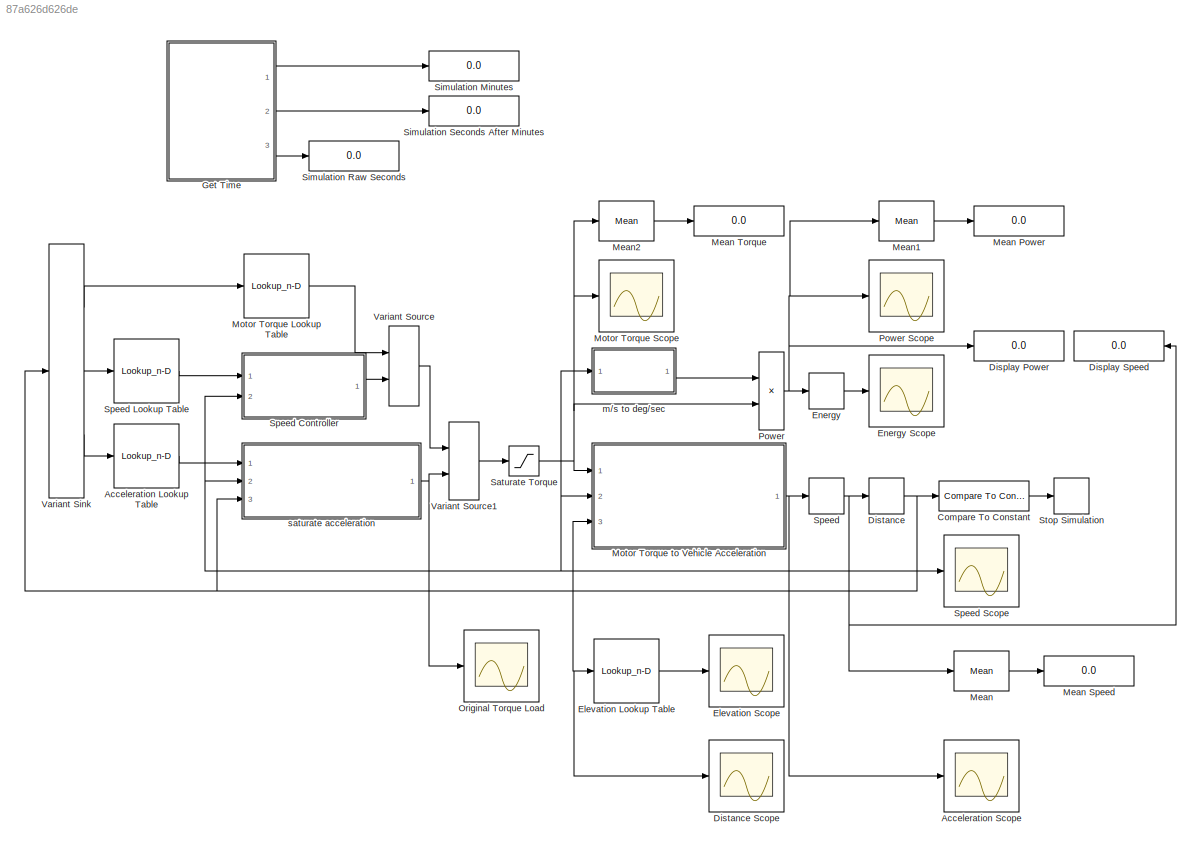
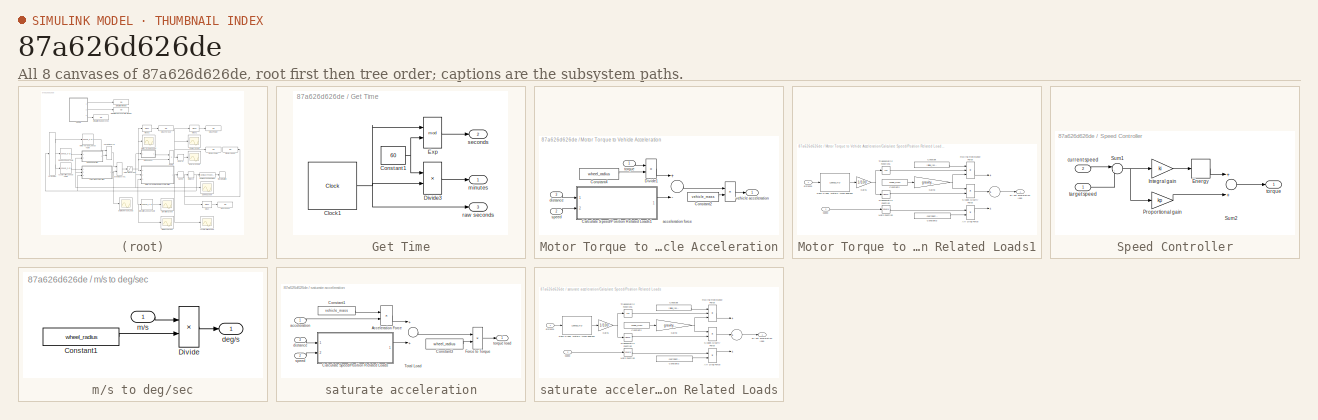
[diagram: thumbnail index - all 8 canvases of the model, root first then tree order]
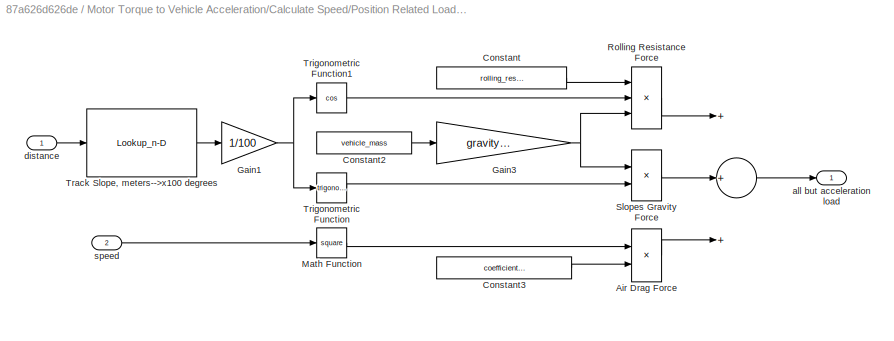
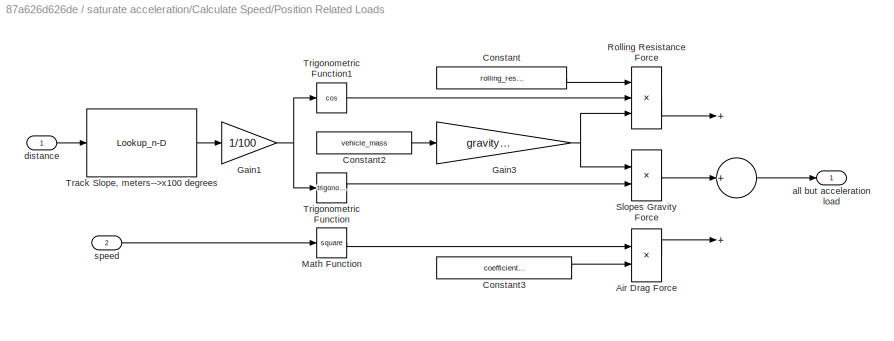
MODEL slx_87a626d626de
KIND model
CONFIG AbsTol = auto
CONFIG EnableMultiTasking = off
CONFIG FixedStep = auto
CONFIG MaxStep = auto
CONFIG MinStep = auto
CONFIG RelTol = 1e-3
CONFIG SampleTimeConstraint = Unconstrained
CONFIG Solver = ode4
CONFIG SolverName = ode4
CONFIG StartTime = 0.0
CONFIG StopTime = 330
BLOCK [Lookup_n-D] Acceleration Lookup Table
  BreakpointsForDimension1 = desired_acceleration_samples_positions
  InternalRulePriority = Speed
  NumberOfTableDimensions = 1
  Ports = [1, 1]
  RndMeth = Simplest
  Table = desired_acceleration
BLOCK [Scope] Acceleration Scope
  Floating = off
  NumInputPorts = 1
  Ports = [1]
  ScopeSpecificationString = Simulink.scopes.TimeScopeBlockCfg('CurrentConfiguration', extmgr.ConfigurationSet(extmgr.Configuration('Core','General UI',true),extmgr.Configuration('Core','Source UI',true),extmgr.Configuration('Sources','WiredSimulink',true,'DataLoggingVariableName','ScopeData3'),extmgr.Configuration('Visuals','Time Domain',true,'SerializedDisplays',{struct('MinYLimReal','-0.40812','MaxYLimReal','0.76139','YLab...<+1523ch>
BLOCK [Reference] Compare To Constant  REF=simulink/Logic and Bit
Operations/Compare
To Constant
  Ports = [1, 1]
  SourceBlock = simulink/Logic and Bit\nOperations/Compare\nTo Constant
  SourceProductBaseCode = SL
  SourceProductName = Simulink
  SourceType = Compare To Constant
BLOCK [Display] Display Power
  Decimation = 1
  Ports = [1]
BLOCK [Display] Display Speed
  Decimation = 1
  Ports = [1]
BLOCK [DiscreteIntegrator] Distance
  ICPrevOutput = DiscIntNeverNeededParam
  ICPrevScaledInput = DiscIntNeverNeededParam
  Ports = [1, 1]
  SampleTime = Ts
BLOCK [Scope] Distance Scope
  Floating = off
  NumInputPorts = 1
  Ports = [1]
  ScopeSpecificationString = Simulink.scopes.TimeScopeBlockCfg('CurrentConfiguration', extmgr.ConfigurationSet(extmgr.Configuration('Core','General UI',true),extmgr.Configuration('Core','Source UI',true),extmgr.Configuration('Sources','WiredSimulink',true,'DataLoggingVariableName','ScopeData6'),extmgr.Configuration('Visuals','Time Domain',true,'SerializedDisplays',{struct('MinYLimReal','-280.50002','MaxYLimReal','2524.50014',...<+1506ch>
BLOCK [Lookup_n-D] Elevation Lookup Table
  BreakpointsForDimension1 = interpolated_positions
  InternalRulePriority = Speed
  NumberOfTableDimensions = 1
  Ports = [1, 1]
  RndMeth = Simplest
  Table = interpolated_elevation
BLOCK [Scope] Elevation Scope
  Floating = off
  NumInputPorts = 1
  Ports = [1]
  ScopeSpecificationString = Simulink.scopes.TimeScopeBlockCfg('CurrentConfiguration', extmgr.ConfigurationSet(extmgr.Configuration('Core','General UI',true),extmgr.Configuration('Core','Source UI',true),extmgr.Configuration('Sources','WiredSimulink',true,'DataLoggingVariableName','ScopeData1'),extmgr.Configuration('Visuals','Time Domain',true,'SerializedDisplays',{struct('MinYLimReal','0','MaxYLimReal','15','YLabelReal','','...<+1478ch>
BLOCK [DiscreteIntegrator] Energy
  ICPrevOutput = DiscIntNeverNeededParam
  ICPrevScaledInput = DiscIntNeverNeededParam
  Ports = [1, 1]
  SampleTime = Ts
  gainval = 0.1
BLOCK [Scope] Energy Scope
  Floating = off
  NumInputPorts = 1
  Ports = [1]
  ScopeSpecificationString = Simulink.scopes.TimeScopeBlockCfg('CurrentConfiguration', extmgr.ConfigurationSet(extmgr.Configuration('Core','General UI',true),extmgr.Configuration('Core','Source UI',true),extmgr.Configuration('Sources','WiredSimulink',true,'DataLoggingVariableName','ScopeData17'),extmgr.Configuration('Visuals','Time Domain',true,'SerializedDisplays',{struct('MinYLimReal','-136.13484','MaxYLimReal','1225.21359'...<+1512ch>
BLOCK [SubSystem] Get Time
  Ports = [0, 3]
  RequestExecContextInheritance = off
BLOCK [Clock] Get Time/Clock1
  Decimation = 1/Ts
  DisplayTime = on
BLOCK [Constant] Get Time/Constant1
  Value = 60
BLOCK [Product] Get Time/Divide3
  InputSameDT = off
  Inputs = /*
  OutDataTypeStr = fixdt('int8', 'DataTypeOverride', 'Off')
  Ports = [2, 1]
  RndMeth = Floor
  SaturateOnIntegerOverflow = off
BLOCK [Math] Get Time/Exp
  Operator = mod
  Ports = [2, 1]
BLOCK [Outport] Get Time/minutes
  IconDisplay = Port number
BLOCK [Outport] Get Time/raw seconds
  IconDisplay = Port number
  Port = 3
BLOCK [Outport] Get Time/seconds
  IconDisplay = Port number
  Port = 2
BLOCK [Reference] Mean  REF=dspstat3/Mean
  Ports = [1, 1]
  SourceBlock = dspstat3/Mean
  SourceProductBaseCode = DS
  SourceProductName = DSP System Toolbox
  SourceType = Mean
  UserDataPersistent = on
BLOCK [Display] Mean Power
  Decimation = 1
  Ports = [1]
BLOCK [Display] Mean Speed
  Decimation = 1
  Ports = [1]
BLOCK [Display] Mean Torque
  Decimation = 1
  Ports = [1]
BLOCK [Reference] Mean1  REF=dspstat3/Mean
  Ports = [1, 1]
  SourceBlock = dspstat3/Mean
  SourceProductBaseCode = DS
  SourceProductName = DSP System Toolbox
  SourceType = Mean
  UserDataPersistent = on
BLOCK [Reference] Mean2  REF=dspstat3/Mean
  Ports = [1, 1]
  SourceBlock = dspstat3/Mean
  SourceProductBaseCode = DS
  SourceProductName = DSP System Toolbox
  SourceType = Mean
  UserDataPersistent = on
BLOCK [Lookup_n-D] Motor Torque Lookup Table
  BreakpointsForDimension1 = desired_torque_samples_positions
  InternalRulePriority = Speed
  NumberOfTableDimensions = 1
  Ports = [1, 1]
  RndMeth = Simplest
  Table = desired_torque
BLOCK [Scope] Motor Torque Scope
  Floating = off
  NumInputPorts = 1
  Ports = [1]
  ScopeSpecificationString = Simulink.scopes.TimeScopeBlockCfg('CurrentConfiguration', extmgr.ConfigurationSet(extmgr.Configuration('Core','General UI',true),extmgr.Configuration('Core','Source UI',true),extmgr.Configuration('Sources','WiredSimulink',true,'DataLoggingVariableName','ScopeData2'),extmgr.Configuration('Visuals','Time Domain',true,'SerializedDisplays',{struct('MinYLimReal','-1.875','MaxYLimReal','16.875','YLabelR...<+1494ch>
BLOCK [SubSystem] Motor Torque to Vehicle Acceleration
  Ports = [3, 1]
  RequestExecContextInheritance = off
BLOCK [Product] Motor Torque to Vehicle Acceleration/ 
  InputSameDT = off
  Inputs = */
  OutDataTypeStr = Inherit: Inherit via internal rule
  Ports = [2, 1]
  RndMeth = Floor
  SaturateOnIntegerOverflow = off
BLOCK [SubSystem] Motor Torque to Vehicle Acceleration/Calculate Speed//Position Related Loads1
  Ports = [2, 1]
  RequestExecContextInheritance = off
BLOCK [Sum] Motor Torque to Vehicle Acceleration/Calculate Speed//Position Related Loads1/ 
  InputSameDT = off
  Inputs = +++
  OutDataTypeStr = Inherit: Inherit via internal rule
  Ports = [3, 1]
  SaturateOnIntegerOverflow = off
BLOCK [Product] Motor Torque to Vehicle Acceleration/Calculate Speed//Position Related Loads1/Air Drag Force
  InputSameDT = off
  OutDataTypeStr = Inherit: Inherit via internal rule
  Ports = [2, 1]
  RndMeth = Floor
  SampleTime = Ts
  SaturateOnIntegerOverflow = off
BLOCK [Constant] Motor Torque to Vehicle Acceleration/Calculate Speed//Position Related Loads1/Constant
  SampleTime = Ts
  Value = rolling_resistance_factor
BLOCK [Constant] Motor Torque to Vehicle Acceleration/Calculate Speed//Position Related Loads1/Constant2
  SampleTime = Ts
  Value = vehicle_mass
BLOCK [Constant] Motor Torque to Vehicle Acceleration/Calculate Speed//Position Related Loads1/Constant3
  SampleTime = Ts
  Value = coefficient_regarding_air
BLOCK [Gain] Motor Torque to Vehicle Acceleration/Calculate Speed//Position Related Loads1/Gain1
  Gain = 1/100
  OutDataTypeStr = Inherit: Inherit via internal rule
  ParamDataTypeStr = Inherit: Inherit via internal rule
  SampleTime = Ts
  SaturateOnIntegerOverflow = off
BLOCK [Gain] Motor Torque to Vehicle Acceleration/Calculate Speed//Position Related Loads1/Gain3
  Gain = gravity_acceleration
  OutDataTypeStr = Inherit: Inherit via internal rule
  ParamDataTypeStr = Inherit: Inherit via internal rule
  SampleTime = Ts
  SaturateOnIntegerOverflow = off
BLOCK [Math] Motor Torque to Vehicle Acceleration/Calculate Speed//Position Related Loads1/Math Function
  Operator = square
  Ports = [1, 1]
BLOCK [Product] Motor Torque to Vehicle Acceleration/Calculate Speed//Position Related Loads1/Rolling Resistance Force
  InputSameDT = off
  Inputs = 3
  OutDataTypeStr = Inherit: Inherit via internal rule
  Ports = [3, 1]
  RndMeth = Floor
  SampleTime = Ts
  SaturateOnIntegerOverflow = off
BLOCK [Product] Motor Torque to Vehicle Acceleration/Calculate Speed//Position Related Loads1/Slopes Gravity Force
  InputSameDT = off
  OutDataTypeStr = Inherit: Inherit via internal rule
  Ports = [2, 1]
  RndMeth = Floor
  SampleTime = Ts
  SaturateOnIntegerOverflow = off
BLOCK [Lookup_n-D] Motor Torque to Vehicle Acceleration/Calculate Speed//Position Related Loads1/Track Slope, meters-->x100 degrees
  BreakpointsForDimension1 = interpolated_positions
  InternalRulePriority = Speed
  NumberOfTableDimensions = 1
  Ports = [1, 1]
  RndMeth = Simplest
  Table = interpolated_slope
BLOCK [Trigonometry] Motor Torque to Vehicle Acceleration/Calculate Speed//Position Related Loads1/Trigonometric Function
  Ports = [1, 1]
  SampleTime = Ts
BLOCK [Trigonometry] Motor Torque to Vehicle Acceleration/Calculate Speed//Position Related Loads1/Trigonometric Function1
  Operator = cos
  Ports = [1, 1]
  SampleTime = Ts
BLOCK [Outport] Motor Torque to Vehicle Acceleration/Calculate Speed//Position Related Loads1/all but acceleration load
  IconDisplay = Port number
BLOCK [Inport] Motor Torque to Vehicle Acceleration/Calculate Speed//Position Related Loads1/distance
  IconDisplay = Port number
BLOCK [Inport] Motor Torque to Vehicle Acceleration/Calculate Speed//Position Related Loads1/speed
  IconDisplay = Port number
  Port = 2
BLOCK [Constant] Motor Torque to Vehicle Acceleration/Constant2
  SampleTime = Ts
  Value = vehicle_mass
BLOCK [Constant] Motor Torque to Vehicle Acceleration/Constant4
  SampleTime = Ts
  Value = wheel_radius
BLOCK [Product] Motor Torque to Vehicle Acceleration/Divide1
  InputSameDT = off
  Inputs = */
  OutDataTypeStr = Inherit: Inherit via internal rule
  Ports = [2, 1]
  RndMeth = Floor
  SaturateOnIntegerOverflow = off
BLOCK [Sum] Motor Torque to Vehicle Acceleration/acceleration force
  InputSameDT = off
  Inputs = +-
  OutDataTypeStr = Inherit: Inherit via internal rule
  Ports = [2, 1]
  SaturateOnIntegerOverflow = off
BLOCK [Inport] Motor Torque to Vehicle Acceleration/distance
  IconDisplay = Port number
  Port = 3
BLOCK [Inport] Motor Torque to Vehicle Acceleration/speed
  IconDisplay = Port number
  Port = 2
BLOCK [Inport] Motor Torque to Vehicle Acceleration/torque
  IconDisplay = Port number
BLOCK [Outport] Motor Torque to Vehicle Acceleration/vehicle acceleration
  IconDisplay = Port number
BLOCK [Scope] Original Torque Load
  Floating = off
  NumInputPorts = 1
  Ports = [1]
  ScopeSpecificationString = Simulink.scopes.TimeScopeBlockCfg('CurrentConfiguration', extmgr.ConfigurationSet(extmgr.Configuration('Core','General UI',true),extmgr.Configuration('Core','Source UI',true),extmgr.Configuration('Sources','WiredSimulink',true,'DataLoggingVariableName','ScopeData5'),extmgr.Configuration('Visuals','Time Domain',true,'SerializedDisplays',{struct('MinYLimReal','-9.68016','MaxYLimReal','13.4435','YLab...<+1507ch>
BLOCK [Product] Power
  InputSameDT = off
  OutDataTypeStr = Inherit: Inherit via internal rule
  Ports = [2, 1]
  RndMeth = Floor
  SaturateOnIntegerOverflow = off
BLOCK [Scope] Power Scope
  Floating = off
  NumInputPorts = 1
  Ports = [1]
  ScopeSpecificationString = Simulink.scopes.TimeScopeBlockCfg('CurrentConfiguration', extmgr.ConfigurationSet(extmgr.Configuration('Core','General UI',true),extmgr.Configuration('Core','Source UI',true),extmgr.Configuration('Sources','WiredSimulink',true,'DataLoggingVariableName','ScopeData16'),extmgr.Configuration('Visuals','Time Domain',true,'SerializedDisplays',{struct('MinYLimReal','-19.31406','MaxYLimReal','173.82658','...<+1503ch>
BLOCK [Saturate] Saturate Torque
  InputPortMap = u0
  LowerLimit = min_torque
  Ports = [1, 1]
  UpperLimit = max_torque
BLOCK [Display] Simulation Minutes
  Decimation = 1
  Ports = [1]
BLOCK [Display] Simulation Raw Seconds
  Decimation = 1
  Ports = [1]
BLOCK [Display] Simulation Seconds After Minutes
  Decimation = 1
  Ports = [1]
BLOCK [DiscreteIntegrator] Speed
  ICPrevOutput = DiscIntNeverNeededParam
  ICPrevScaledInput = DiscIntNeverNeededParam
  Ports = [1, 1]
  SampleTime = Ts
BLOCK [SubSystem] Speed Controller
  Ports = [2, 1]
  RequestExecContextInheritance = off
BLOCK [DiscreteIntegrator] Speed Controller/Energy
  ICPrevOutput = DiscIntNeverNeededParam
  ICPrevScaledInput = DiscIntNeverNeededParam
  Ports = [1, 1]
  SampleTime = Ts
  gainval = 0.1
BLOCK [Gain] Speed Controller/Integral gain
  Gain = ki
BLOCK [Gain] Speed Controller/Proportional gain
  Gain = kp
BLOCK [Sum] Speed Controller/Sum1
  IconShape = round
  Inputs = |-+
  Ports = [2, 1]
BLOCK [Sum] Speed Controller/Sum2
  Ports = [2, 1]
BLOCK [Inport] Speed Controller/current speed
  IconDisplay = Port number
  Port = 2
BLOCK [Inport] Speed Controller/target speed
  IconDisplay = Port number
BLOCK [Outport] Speed Controller/torque
  IconDisplay = Port number
BLOCK [Lookup_n-D] Speed Lookup Table
  BreakpointsForDimension1 = desired_speed_samples_positions
  InternalRulePriority = Speed
  NumberOfTableDimensions = 1
  Ports = [1, 1]
  RndMeth = Simplest
  Table = desired_speed
BLOCK [Scope] Speed Scope
  Floating = off
  NumInputPorts = 1
  Ports = [1]
  ScopeSpecificationString = Simulink.scopes.TimeScopeBlockCfg('CurrentConfiguration', extmgr.ConfigurationSet(extmgr.Configuration('Core','General UI',true),extmgr.Configuration('Core','Source UI',true),extmgr.Configuration('Sources','WiredSimulink',true,'DataLoggingVariableName','ScopeData4'),extmgr.Configuration('Visuals','Time Domain',true,'SerializedDisplays',{struct('MinYLimReal','-1.22292','MaxYLimReal','11.00624','YLa...<+1495ch>
BLOCK [Stop] Stop Simulation
BLOCK [VariantSink] Variant Sink
  Ports = [1, 3]
BLOCK [VariantSource] Variant Source
  AllowZeroVariantControls = on
  Ports = [2, 1]
BLOCK [VariantSource] Variant Source1
  Ports = [2, 1]
BLOCK [SubSystem] m//s to deg//sec
  Ports = [1, 1]
  RequestExecContextInheritance = off
BLOCK [Constant] m//s to deg//sec/Constant1
  SampleTime = Ts
  Value = wheel_radius
BLOCK [Product] m//s to deg//sec/Divide
  InputSameDT = off
  Inputs = */
  OutDataTypeStr = Inherit: Inherit via internal rule
  Ports = [2, 1]
  RndMeth = Floor
  SaturateOnIntegerOverflow = off
BLOCK [Outport] m//s to deg//sec/deg//s
  IconDisplay = Port number
BLOCK [Inport] m//s to deg//sec/m//s
  IconDisplay = Port number
BLOCK [SubSystem] saturate acceleration
  Ports = [3, 1]
  RequestExecContextInheritance = off
BLOCK [Product] saturate acceleration/Acceleration Force
  InputSameDT = off
  OutDataTypeStr = Inherit: Inherit via internal rule
  Ports = [2, 1]
  RndMeth = Floor
  SampleTime = Ts
  SaturateOnIntegerOverflow = off
BLOCK [SubSystem] saturate acceleration/Calculate Speed//Position Related Loads
  Ports = [2, 1]
  RequestExecContextInheritance = off
BLOCK [Sum] saturate acceleration/Calculate Speed//Position Related Loads/ 
  InputSameDT = off
  Inputs = +++
  OutDataTypeStr = Inherit: Inherit via internal rule
  Ports = [3, 1]
  SaturateOnIntegerOverflow = off
BLOCK [Product] saturate acceleration/Calculate Speed//Position Related Loads/Air Drag Force
  InputSameDT = off
  OutDataTypeStr = Inherit: Inherit via internal rule
  Ports = [2, 1]
  RndMeth = Floor
  SampleTime = Ts
  SaturateOnIntegerOverflow = off
BLOCK [Constant] saturate acceleration/Calculate Speed//Position Related Loads/Constant
  SampleTime = Ts
  Value = rolling_resistance_factor
BLOCK [Constant] saturate acceleration/Calculate Speed//Position Related Loads/Constant2
  SampleTime = Ts
  Value = vehicle_mass
BLOCK [Constant] saturate acceleration/Calculate Speed//Position Related Loads/Constant3
  SampleTime = Ts
  Value = coefficient_regarding_air
BLOCK [Gain] saturate acceleration/Calculate Speed//Position Related Loads/Gain1
  Gain = 1/100
  OutDataTypeStr = Inherit: Inherit via internal rule
  ParamDataTypeStr = Inherit: Inherit via internal rule
  SampleTime = Ts
  SaturateOnIntegerOverflow = off
BLOCK [Gain] saturate acceleration/Calculate Speed//Position Related Loads/Gain3
  Gain = gravity_acceleration
  OutDataTypeStr = Inherit: Inherit via internal rule
  ParamDataTypeStr = Inherit: Inherit via internal rule
  SampleTime = Ts
  SaturateOnIntegerOverflow = off
BLOCK [Math] saturate acceleration/Calculate Speed//Position Related Loads/Math Function
  Operator = square
  Ports = [1, 1]
BLOCK [Product] saturate acceleration/Calculate Speed//Position Related Loads/Rolling Resistance Force
  InputSameDT = off
  Inputs = 3
  OutDataTypeStr = Inherit: Inherit via internal rule
  Ports = [3, 1]
  RndMeth = Floor
  SampleTime = Ts
  SaturateOnIntegerOverflow = off
BLOCK [Product] saturate acceleration/Calculate Speed//Position Related Loads/Slopes Gravity Force
  InputSameDT = off
  OutDataTypeStr = Inherit: Inherit via internal rule
  Ports = [2, 1]
  RndMeth = Floor
  SampleTime = Ts
  SaturateOnIntegerOverflow = off
BLOCK [Lookup_n-D] saturate acceleration/Calculate Speed//Position Related Loads/Track Slope, meters-->x100 degrees
  BreakpointsForDimension1 = interpolated_positions
  InternalRulePriority = Speed
  NumberOfTableDimensions = 1
  Ports = [1, 1]
  RndMeth = Simplest
  Table = interpolated_slope
BLOCK [Trigonometry] saturate acceleration/Calculate Speed//Position Related Loads/Trigonometric Function
  Ports = [1, 1]
  SampleTime = Ts
BLOCK [Trigonometry] saturate acceleration/Calculate Speed//Position Related Loads/Trigonometric Function1
  Operator = cos
  Ports = [1, 1]
  SampleTime = Ts
BLOCK [Outport] saturate acceleration/Calculate Speed//Position Related Loads/all but acceleration load
  IconDisplay = Port number
BLOCK [Inport] saturate acceleration/Calculate Speed//Position Related Loads/distance
  IconDisplay = Port number
BLOCK [Inport] saturate acceleration/Calculate Speed//Position Related Loads/speed
  IconDisplay = Port number
  Port = 2
BLOCK [Constant] saturate acceleration/Constant1
  SampleTime = Ts
  Value = vehicle_mass
BLOCK [Constant] saturate acceleration/Constant3
  SampleTime = Ts
  Value = wheel_radius
BLOCK [Product] saturate acceleration/Force to Torque
  InputSameDT = off
  OutDataTypeStr = Inherit: Inherit via internal rule
  Ports = [2, 1]
  RndMeth = Floor
  SampleTime = Ts
  SaturateOnIntegerOverflow = off
BLOCK [Sum] saturate acceleration/Total Load
  InputSameDT = off
  OutDataTypeStr = Inherit: Inherit via internal rule
  Ports = [2, 1]
  SaturateOnIntegerOverflow = off
BLOCK [Inport] saturate acceleration/acceleration
  IconDisplay = Port number
BLOCK [Inport] saturate acceleration/distance
  IconDisplay = Port number
  Port = 3
BLOCK [Inport] saturate acceleration/speed
  IconDisplay = Port number
  Port = 2
BLOCK [Outport] saturate acceleration/torque load
  IconDisplay = Port number
LINE Acceleration Lookup Table:1 -> saturate acceleration:1
LINE Compare To Constant:1 -> Stop Simulation:1
NET Distance:1 -> Compare To Constant:1, Distance Scope:1, Elevation Lookup Table:1, Motor Torque to Vehicle Acceleration:3, Variant Sink:1, saturate acceleration:3
LINE Elevation Lookup Table:1 -> Elevation Scope:1
LINE Energy:1 -> Energy Scope:1
NET Get Time/Clock1:1 -> Get Time/Divide3:2, Get Time/Exp:1, Get Time/raw seconds:1
NET Get Time/Constant1:1 -> Get Time/Divide3:1, Get Time/Exp:2
LINE Get Time/Divide3:1 -> Get Time/minutes:1
LINE Get Time/Exp:1 -> Get Time/seconds:1
LINE Get Time:1 -> Simulation Minutes:1
LINE Get Time:2 -> Simulation Seconds After Minutes:1
LINE Get Time:3 -> Simulation Raw Seconds:1
LINE Mean1:1 -> Mean Power:1
LINE Mean2:1 -> Mean Torque:1
LINE Mean:1 -> Mean Speed:1
LINE Motor Torque Lookup Table:1 -> Variant Source:1
LINE Motor Torque to Vehicle Acceleration/ :1 -> Motor Torque to Vehicle Acceleration/vehicle acceleration:1
LINE Motor Torque to Vehicle Acceleration/Calculate Speed//Position Related Loads1/ :1 -> Motor Torque to Vehicle Acceleration/Calculate Speed//Position Related Loads1/all but acceleration load:1
LINE Motor Torque to Vehicle Acceleration/Calculate Speed//Position Related Loads1/Air Drag Force:1 -> Motor Torque to Vehicle Acceleration/Calculate Speed//Position Related Loads1/ :3
LINE Motor Torque to Vehicle Acceleration/Calculate Speed//Position Related Loads1/Constant2:1 -> Motor Torque to Vehicle Acceleration/Calculate Speed//Position Related Loads1/Gain3:1
LINE Motor Torque to Vehicle Acceleration/Calculate Speed//Position Related Loads1/Constant3:1 -> Motor Torque to Vehicle Acceleration/Calculate Speed//Position Related Loads1/Air Drag Force:2
LINE Motor Torque to Vehicle Acceleration/Calculate Speed//Position Related Loads1/Constant:1 -> Motor Torque to Vehicle Acceleration/Calculate Speed//Position Related Loads1/Rolling Resistance Force:1
NET Motor Torque to Vehicle Acceleration/Calculate Speed//Position Related Loads1/Gain1:1 -> Motor Torque to Vehicle Acceleration/Calculate Speed//Position Related Loads1/Trigonometric Function1:1, Motor Torque to Vehicle Acceleration/Calculate Speed//Position Related Loads1/Trigonometric Function:1
NET Motor Torque to Vehicle Acceleration/Calculate Speed//Position Related Loads1/Gain3:1 -> Motor Torque to Vehicle Acceleration/Calculate Speed//Position Related Loads1/Rolling Resistance Force:3, Motor Torque to Vehicle Acceleration/Calculate Speed//Position Related Loads1/Slopes Gravity Force:1
LINE Motor Torque to Vehicle Acceleration/Calculate Speed//Position Related Loads1/Math Function:1 -> Motor Torque to Vehicle Acceleration/Calculate Speed//Position Related Loads1/Air Drag Force:1
LINE Motor Torque to Vehicle Acceleration/Calculate Speed//Position Related Loads1/Rolling Resistance Force:1 -> Motor Torque to Vehicle Acceleration/Calculate Speed//Position Related Loads1/ :1
LINE Motor Torque to Vehicle Acceleration/Calculate Speed//Position Related Loads1/Slopes Gravity Force:1 -> Motor Torque to Vehicle Acceleration/Calculate Speed//Position Related Loads1/ :2
LINE Motor Torque to Vehicle Acceleration/Calculate Speed//Position Related Loads1/Track Slope, meters-->x100 degrees:1 -> Motor Torque to Vehicle Acceleration/Calculate Speed//Position Related Loads1/Gain1:1
LINE Motor Torque to Vehicle Acceleration/Calculate Speed//Position Related Loads1/Trigonometric Function1:1 -> Motor Torque to Vehicle Acceleration/Calculate Speed//Position Related Loads1/Rolling Resistance Force:2
LINE Motor Torque to Vehicle Acceleration/Calculate Speed//Position Related Loads1/Trigonometric Function:1 -> Motor Torque to Vehicle Acceleration/Calculate Speed//Position Related Loads1/Slopes Gravity Force:2
LINE Motor Torque to Vehicle Acceleration/Calculate Speed//Position Related Loads1/distance:1 -> Motor Torque to Vehicle Acceleration/Calculate Speed//Position Related Loads1/Track Slope, meters-->x100 degrees:1
LINE Motor Torque to Vehicle Acceleration/Calculate Speed//Position Related Loads1/speed:1 -> Motor Torque to Vehicle Acceleration/Calculate Speed//Position Related Loads1/Math Function:1
LINE Motor Torque to Vehicle Acceleration/Calculate Speed//Position Related Loads1:1 -> Motor Torque to Vehicle Acceleration/acceleration force:2
LINE Motor Torque to Vehicle Acceleration/Constant2:1 -> Motor Torque to Vehicle Acceleration/ :2
LINE Motor Torque to Vehicle Acceleration/Constant4:1 -> Motor Torque to Vehicle Acceleration/Divide1:2
LINE Motor Torque to Vehicle Acceleration/Divide1:1 -> Motor Torque to Vehicle Acceleration/acceleration force:1
LINE Motor Torque to Vehicle Acceleration/acceleration force:1 -> Motor Torque to Vehicle Acceleration/ :1
LINE Motor Torque to Vehicle Acceleration/distance:1 -> Motor Torque to Vehicle Acceleration/Calculate Speed//Position Related Loads1:1
LINE Motor Torque to Vehicle Acceleration/speed:1 -> Motor Torque to Vehicle Acceleration/Calculate Speed//Position Related Loads1:2
LINE Motor Torque to Vehicle Acceleration/torque:1 -> Motor Torque to Vehicle Acceleration/Divide1:1
NET Motor Torque to Vehicle Acceleration:1 -> Acceleration Scope:1, Speed:1
NET Power:1 -> Display Power:1, Energy:1, Mean1:1, Power Scope:1
NET Saturate Torque:1 -> Mean2:1, Motor Torque Scope:1, Motor Torque to Vehicle Acceleration:1, Power:2
LINE Speed Controller/Energy:1 -> Speed Controller/Sum2:1
LINE Speed Controller/Integral gain:1 -> Speed Controller/Energy:1
LINE Speed Controller/Proportional gain:1 -> Speed Controller/Sum2:2
NET Speed Controller/Sum1:1 -> Speed Controller/Integral gain:1, Speed Controller/Proportional gain:1
LINE Speed Controller/Sum2:1 -> Speed Controller/torque:1
LINE Speed Controller/current speed:1 -> Speed Controller/Sum1:1
LINE Speed Controller/target speed:1 -> Speed Controller/Sum1:2
LINE Speed Controller:1 -> Variant Source:2
LINE Speed Lookup Table:1 -> Speed Controller:1
NET Speed:1 -> Display Speed:1, Distance:1, Mean:1, Motor Torque to Vehicle Acceleration:2, Speed Controller:2, Speed Scope:1, m//s to deg//sec:1, saturate acceleration:2
LINE Variant Sink:1 -> Motor Torque Lookup Table:1
LINE Variant Sink:2 -> Speed Lookup Table:1
LINE Variant Sink:3 -> Acceleration Lookup Table:1
LINE Variant Source1:1 -> Saturate Torque:1
LINE Variant Source:1 -> Variant Source1:1
LINE m//s to deg//sec/Constant1:1 -> m//s to deg//sec/Divide:2
LINE m//s to deg//sec/Divide:1 -> m//s to deg//sec/deg//s:1
LINE m//s to deg//sec/m//s:1 -> m//s to deg//sec/Divide:1
LINE m//s to deg//sec:1 -> Power:1
LINE saturate acceleration/Acceleration Force:1 -> saturate acceleration/Total Load:1
LINE saturate acceleration/Calculate Speed//Position Related Loads/ :1 -> saturate acceleration/Calculate Speed//Position Related Loads/all but acceleration load:1
LINE saturate acceleration/Calculate Speed//Position Related Loads/Air Drag Force:1 -> saturate acceleration/Calculate Speed//Position Related Loads/ :3
LINE saturate acceleration/Calculate Speed//Position Related Loads/Constant2:1 -> saturate acceleration/Calculate Speed//Position Related Loads/Gain3:1
LINE saturate acceleration/Calculate Speed//Position Related Loads/Constant3:1 -> saturate acceleration/Calculate Speed//Position Related Loads/Air Drag Force:2
LINE saturate acceleration/Calculate Speed//Position Related Loads/Constant:1 -> saturate acceleration/Calculate Speed//Position Related Loads/Rolling Resistance Force:1
NET saturate acceleration/Calculate Speed//Position Related Loads/Gain1:1 -> saturate acceleration/Calculate Speed//Position Related Loads/Trigonometric Function1:1, saturate acceleration/Calculate Speed//Position Related Loads/Trigonometric Function:1
NET saturate acceleration/Calculate Speed//Position Related Loads/Gain3:1 -> saturate acceleration/Calculate Speed//Position Related Loads/Rolling Resistance Force:3, saturate acceleration/Calculate Speed//Position Related Loads/Slopes Gravity Force:1
LINE saturate acceleration/Calculate Speed//Position Related Loads/Math Function:1 -> saturate acceleration/Calculate Speed//Position Related Loads/Air Drag Force:1
LINE saturate acceleration/Calculate Speed//Position Related Loads/Rolling Resistance Force:1 -> saturate acceleration/Calculate Speed//Position Related Loads/ :1
LINE saturate acceleration/Calculate Speed//Position Related Loads/Slopes Gravity Force:1 -> saturate acceleration/Calculate Speed//Position Related Loads/ :2
LINE saturate acceleration/Calculate Speed//Position Related Loads/Track Slope, meters-->x100 degrees:1 -> saturate acceleration/Calculate Speed//Position Related Loads/Gain1:1
LINE saturate acceleration/Calculate Speed//Position Related Loads/Trigonometric Function1:1 -> saturate acceleration/Calculate Speed//Position Related Loads/Rolling Resistance Force:2
LINE saturate acceleration/Calculate Speed//Position Related Loads/Trigonometric Function:1 -> saturate acceleration/Calculate Speed//Position Related Loads/Slopes Gravity Force:2
LINE saturate acceleration/Calculate Speed//Position Related Loads/distance:1 -> saturate acceleration/Calculate Speed//Position Related Loads/Track Slope, meters-->x100 degrees:1
LINE saturate acceleration/Calculate Speed//Position Related Loads/speed:1 -> saturate acceleration/Calculate Speed//Position Related Loads/Math Function:1
LINE saturate acceleration/Calculate Speed//Position Related Loads:1 -> saturate acceleration/Total Load:2
LINE saturate acceleration/Constant1:1 -> saturate acceleration/Acceleration Force:1
LINE saturate acceleration/Constant3:1 -> saturate acceleration/Force to Torque:2
LINE saturate acceleration/Force to Torque:1 -> saturate acceleration/torque load:1
LINE saturate acceleration/Total Load:1 -> saturate acceleration/Force to Torque:1
LINE saturate acceleration/acceleration:1 -> saturate acceleration/Acceleration Force:2
LINE saturate acceleration/distance:1 -> saturate acceleration/Calculate Speed//Position Related Loads:1
LINE saturate acceleration/speed:1 -> saturate acceleration/Calculate Speed//Position Related Loads:2
NET saturate acceleration:1 -> Original Torque Load:1, Variant Source1:2
note: NET lines group one-source signal fan-out (src -> all destinations, sorted); 1:1 wires keep LINE
